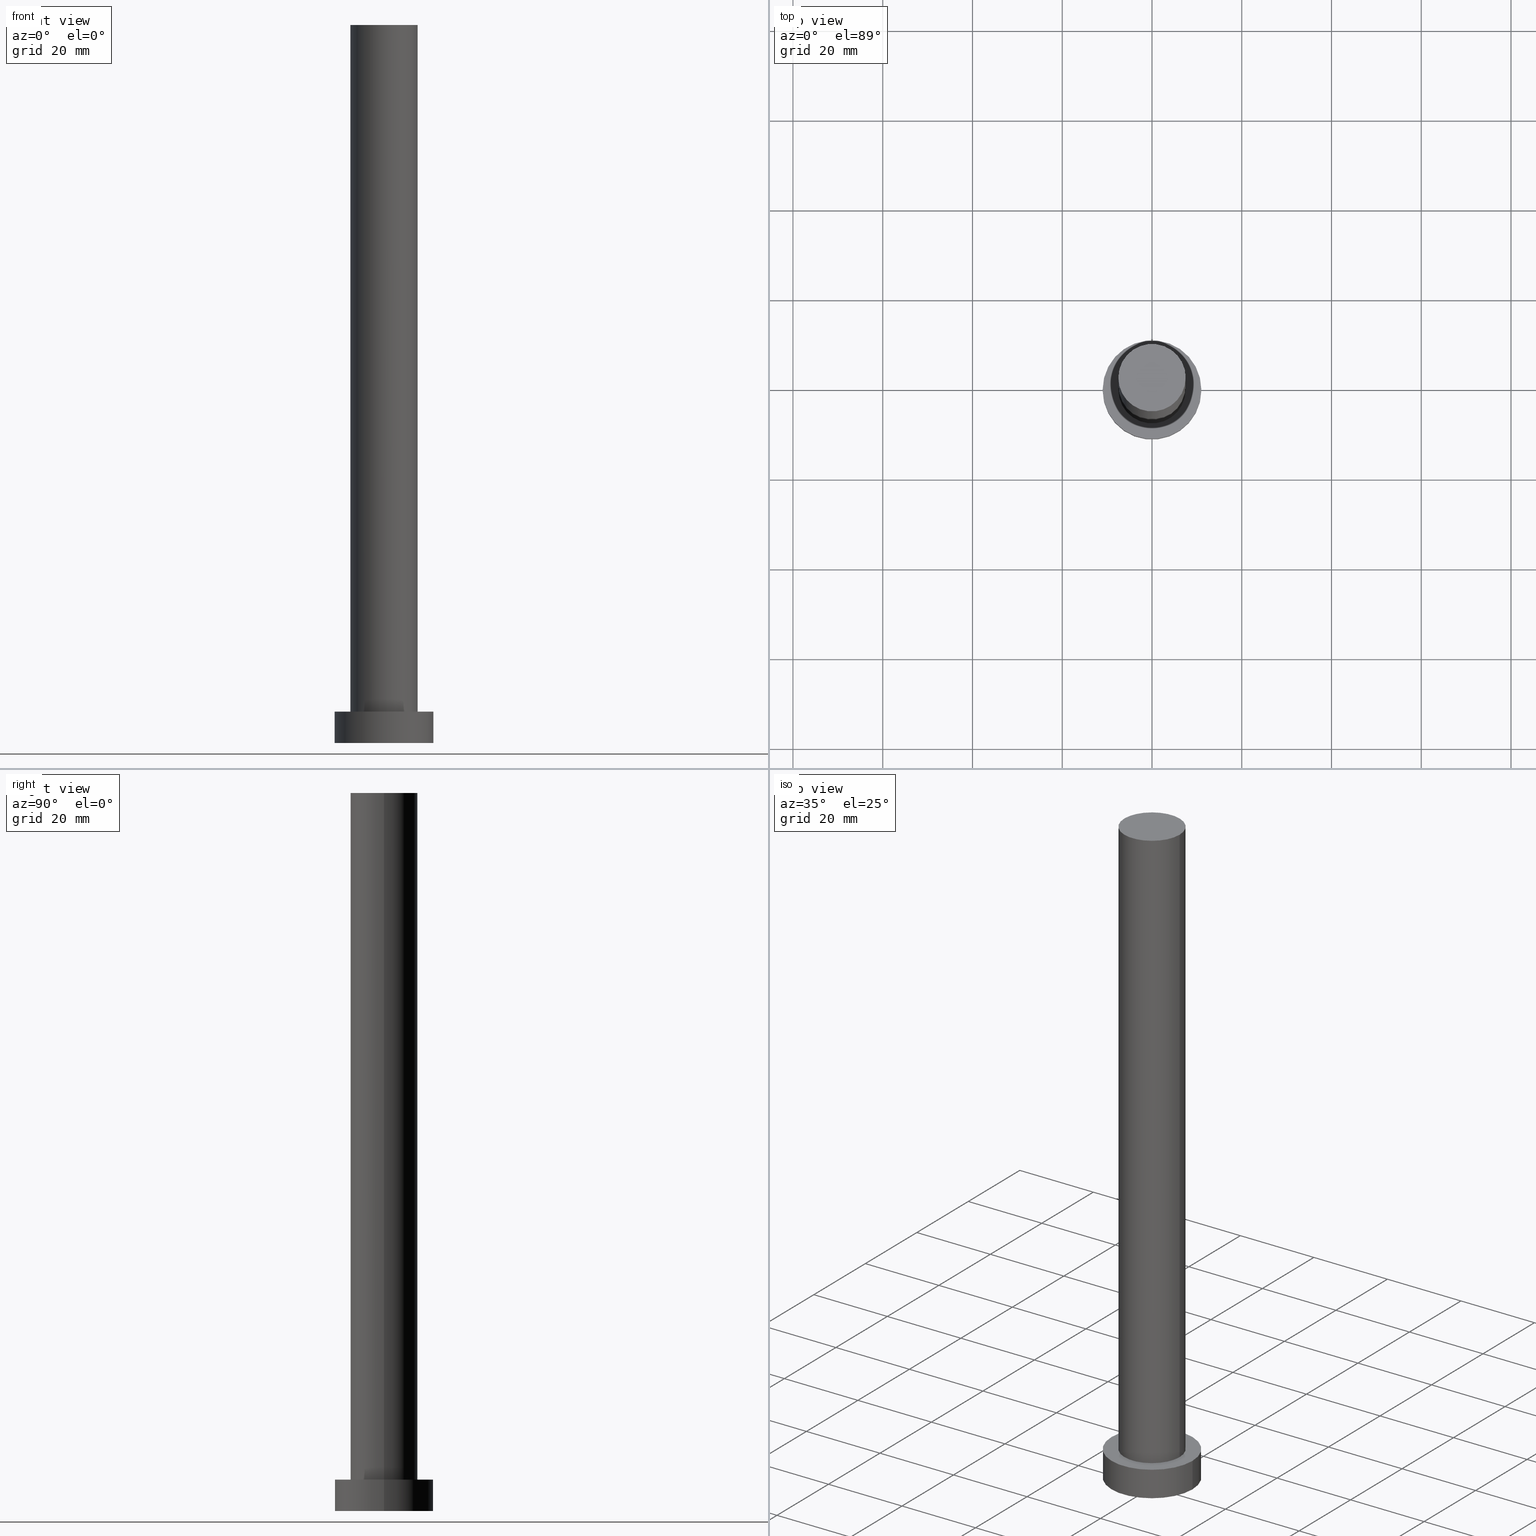
[diagram: canonical four-view strip — front | top / right | iso, engineering-drawing reading convention]
A machine part, canonical four-view strip (front | top / right | iso — engineering-drawing reading convention). The complete STEP part file that produces these views, byte-faithful:
ISO-10303-21;
HEADER;
FILE_DESCRIPTION (( 'STEP AP203' ),
    '1' );
FILE_NAME ('c7ae.STEP',
    '2023-02-13T10:39:53',
    ( '' ),
    ( '' ),
    'SwSTEP 2.0',
    'SolidWorks 2019',
    '' );
FILE_SCHEMA (( 'CONFIG_CONTROL_DESIGN' ));
ENDSEC;

DATA;
#1 = DIRECTION ( 'NONE',  ( 0.000000000000000000, 0.000000000000000000, 1.000000000000000000 ) ) ;
#2 = DIRECTION ( 'NONE',  ( 0.000000000000000000, 0.000000000000000000, 1.000000000000000000 ) ) ;
#3 = DIRECTION ( 'NONE',  ( 1.000000000000000000, 0.000000000000000000, 0.000000000000000000 ) ) ;
#4 = CIRCLE ( 'NONE', #38, 11.00000000000000000 ) ;
#5 = CC_DESIGN_PERSON_AND_ORGANIZATION_ASSIGNMENT ( #91, #173, ( #87 ) ) ;
#6 = AXIS2_PLACEMENT_3D ( 'NONE', #171, #189, #51 ) ;
#7 = UNCERTAINTY_MEASURE_WITH_UNIT (LENGTH_MEASURE( 1.000000000000000082E-05 ), #31, 'distance_accuracy_value', 'NONE');
#8 = EDGE_CURVE ( 'NONE', #103, #221, #65, .T. ) ;
#9 = ORIENTED_EDGE ( 'NONE', *, *, #148, .T. ) ;
#10 = DIRECTION ( 'NONE',  ( -0.000000000000000000, -0.000000000000000000, -1.000000000000000000 ) ) ;
#11 = CC_DESIGN_DATE_AND_TIME_ASSIGNMENT ( #227, #113, ( #125 ) ) ;
#12 = DESIGN_CONTEXT ( 'detailed design', #182, 'design' ) ;
#13 = DIRECTION ( 'NONE',  ( 0.000000000000000000, 0.000000000000000000, 1.000000000000000000 ) ) ;
#14 = APPROVAL_STATUS ( 'not_yet_approved' ) ;
#15 = CARTESIAN_POINT ( 'NONE',  ( 0.000000000000000000, 0.000000000000000000, 7.000000000000000000 ) ) ;
#16 = MANIFOLD_SOLID_BREP ( 'P�idat vysunut�m3', #146 ) ;
#17 = DIRECTION ( 'NONE',  ( 1.000000000000000000, 0.000000000000000000, 0.000000000000000000 ) ) ;
#18 = APPROVAL_STATUS ( 'not_yet_approved' ) ;
#19 = CARTESIAN_POINT ( 'NONE',  ( -7.500000000000000000, 0.000000000000000000, 160.0000000000000000 ) ) ;
#20 = DIRECTION ( 'NONE',  ( 0.000000000000000000, 0.000000000000000000, 1.000000000000000000 ) ) ;
#21 = PERSON_AND_ORGANIZATION ( #185, #168 ) ;
#22 = ADVANCED_FACE ( 'NONE', ( #137, #196 ), #174, .T. ) ;
#23 = FACE_OUTER_BOUND ( 'NONE', #105, .T. ) ;
#24 = CC_DESIGN_PERSON_AND_ORGANIZATION_ASSIGNMENT ( #132, #152, ( #177 ) ) ;
#25 = EDGE_CURVE ( 'NONE', #78, #76, #120, .T. ) ;
#26 = AXIS2_PLACEMENT_3D ( 'NONE', #222, #10, #98 ) ;
#27 = MECHANICAL_CONTEXT ( 'NONE', #69, 'mechanical' ) ;
#28 = ORIENTED_EDGE ( 'NONE', *, *, #219, .T. ) ;
#29 = CALENDAR_DATE ( 2023, 13, 2 ) ;
#30 = ORIENTED_EDGE ( 'NONE', *, *, #49, .T. ) ;
#31 =( LENGTH_UNIT ( ) NAMED_UNIT ( * ) SI_UNIT ( .MILLI., .METRE. ) );
#32 = AXIS2_PLACEMENT_3D ( 'NONE', #144, #181, #3 ) ;
#33 = ORIENTED_EDGE ( 'NONE', *, *, #8, .T. ) ;
#34 = ORIENTED_EDGE ( 'NONE', *, *, #25, .F. ) ;
#35 = PERSON_AND_ORGANIZATION ( #185, #168 ) ;
#36 = EDGE_LOOP ( 'NONE', ( #229, #52 ) ) ;
#37 = VECTOR ( 'NONE', #85, 1000.000000000000000 ) ;
#38 = AXIS2_PLACEMENT_3D ( 'NONE', #249, #194, #17 ) ;
#39 = DIRECTION ( 'NONE',  ( 1.000000000000000000, 0.000000000000000000, 0.000000000000000000 ) ) ;
#40 = CC_DESIGN_APPROVAL ( #54, ( #125 ) ) ;
#41 = COORDINATED_UNIVERSAL_TIME_OFFSET ( 1, 0, .AHEAD. ) ;
#42 = CARTESIAN_POINT ( 'NONE',  ( 0.000000000000000000, 0.000000000000000000, 7.000000000000000000 ) ) ;
#43 = CALENDAR_DATE ( 2023, 13, 2 ) ;
#44 = CARTESIAN_POINT ( 'NONE',  ( 7.500000000000000000, 9.184850993605147944E-16, 7.000000000000000000 ) ) ;
#45 = DIRECTION ( 'NONE',  ( -1.000000000000000000, 0.000000000000000000, 0.000000000000000000 ) ) ;
#46 = PRODUCT_RELATED_PRODUCT_CATEGORY ( 'detail', '', ( #177 ) ) ;
#47 = LOCAL_TIME ( 11, 39, 53.00000000000000000, #230 ) ;
#48 = CARTESIAN_POINT ( 'NONE',  ( 7.500000000000000000, 9.184850993605147944E-16, 160.0000000000000000 ) ) ;
#49 = EDGE_CURVE ( 'NONE', #58, #245, #215, .T. ) ;
#50 = ORIENTED_EDGE ( 'NONE', *, *, #151, .F. ) ;
#51 = DIRECTION ( 'NONE',  ( 1.000000000000000000, 0.000000000000000000, 0.000000000000000000 ) ) ;
#52 = ORIENTED_EDGE ( 'NONE', *, *, #151, .T. ) ;
#53 = APPROVAL_STATUS ( 'not_yet_approved' ) ;
#54 = APPROVAL ( #14, 'NEUR�EN�' ) ;
#55 = ORIENTED_EDGE ( 'NONE', *, *, #71, .T. ) ;
#56 = VECTOR ( 'NONE', #232, 1000.000000000000000 ) ;
#57 =( GEOMETRIC_REPRESENTATION_CONTEXT ( 3 ) GLOBAL_UNCERTAINTY_ASSIGNED_CONTEXT ( ( #7 ) ) GLOBAL_UNIT_ASSIGNED_CONTEXT ( ( #31, #97, #73 ) ) REPRESENTATION_CONTEXT ( 'NONE', 'WORKASPACE' ) );
#58 = VERTEX_POINT ( 'NONE', #135 ) ;
#59 = VERTEX_POINT ( 'NONE', #44 ) ;
#60 = DIRECTION ( 'NONE',  ( 1.000000000000000000, 0.000000000000000000, 0.000000000000000000 ) ) ;
#61 = AXIS2_PLACEMENT_3D ( 'NONE', #218, #124, #145 ) ;
#62 = DIRECTION ( 'NONE',  ( 1.000000000000000000, 0.000000000000000000, -0.000000000000000000 ) ) ;
#63 = PLANE ( 'NONE',  #250 ) ;
#64 = ADVANCED_BREP_SHAPE_REPRESENTATION ( 'c7ae', ( #16, #6 ), #57 ) ;
#65 = LINE ( 'NONE', #191, #56 ) ;
#66 = PLANE ( 'NONE',  #61 ) ;
#67 = CC_DESIGN_APPROVAL ( #214, ( #149 ) ) ;
#68 = EDGE_CURVE ( 'NONE', #58, #103, #104, .T. ) ;
#69 = APPLICATION_CONTEXT ( 'configuration controlled 3d designs of mechanical parts and assemblies' ) ;
#70 = CIRCLE ( 'NONE', #242, 11.00000000000000000 ) ;
#71 = EDGE_CURVE ( 'NONE', #59, #76, #79, .T. ) ;
#72 = EDGE_LOOP ( 'NONE', ( #131, #224 ) ) ;
#73 =( NAMED_UNIT ( * ) SI_UNIT ( $, .STERADIAN. ) SOLID_ANGLE_UNIT ( ) );
#74 = AXIS2_PLACEMENT_3D ( 'NONE', #42, #252, #62 ) ;
#75 = CC_DESIGN_APPROVAL ( #89, ( #87 ) ) ;
#76 = VERTEX_POINT ( 'NONE', #90 ) ;
#77 = ORIENTED_EDGE ( 'NONE', *, *, #207, .T. ) ;
#78 = VERTEX_POINT ( 'NONE', #161 ) ;
#79 = CIRCLE ( 'NONE', #240, 7.500000000000000000 ) ;
#80 = EDGE_CURVE ( 'NONE', #186, #78, #255, .T. ) ;
#81 = APPROVAL_PERSON_ORGANIZATION ( #136, #89, #155 ) ;
#82 = CYLINDRICAL_SURFACE ( 'NONE', #126, 7.500000000000000000 ) ;
#83 = DATE_TIME_ROLE ( 'classification_date' ) ;
#84 = DIRECTION ( 'NONE',  ( -0.000000000000000000, -0.000000000000000000, -1.000000000000000000 ) ) ;
#85 = DIRECTION ( 'NONE',  ( -0.000000000000000000, -0.000000000000000000, -1.000000000000000000 ) ) ;
#86 = APPROVAL_DATE_TIME ( #158, #89 ) ;
#87 = SECURITY_CLASSIFICATION ( '', '', #253 ) ;
#88 = ORIENTED_EDGE ( 'NONE', *, *, #148, .F. ) ;
#89 = APPROVAL ( #18, 'NEUR�EN�' ) ;
#90 = CARTESIAN_POINT ( 'NONE',  ( -7.500000000000000000, 0.000000000000000000, 7.000000000000000000 ) ) ;
#91 = PERSON_AND_ORGANIZATION ( #185, #168 ) ;
#92 = CARTESIAN_POINT ( 'NONE',  ( 11.00000000000000000, 1.347111479062088405E-15, 0.000000000000000000 ) ) ;
#93 = CIRCLE ( 'NONE', #32, 7.500000000000000000 ) ;
#94 = ADVANCED_FACE ( 'NONE', ( #217 ), #82, .T. ) ;
#95 = CARTESIAN_POINT ( 'NONE',  ( 0.000000000000000000, 0.000000000000000000, 160.0000000000000000 ) ) ;
#96 = ORIENTED_EDGE ( 'NONE', *, *, #8, .F. ) ;
#97 =( NAMED_UNIT ( * ) PLANE_ANGLE_UNIT ( ) SI_UNIT ( $, .RADIAN. ) );
#98 = DIRECTION ( 'NONE',  ( -1.000000000000000000, 0.000000000000000000, 0.000000000000000000 ) ) ;
#99 = APPROVAL_ROLE ( '' ) ;
#100 = DIRECTION ( 'NONE',  ( 0.000000000000000000, 0.000000000000000000, 1.000000000000000000 ) ) ;
#101 = CARTESIAN_POINT ( 'NONE',  ( 0.000000000000000000, 0.000000000000000000, 160.0000000000000000 ) ) ;
#102 = SHAPE_DEFINITION_REPRESENTATION ( #193, #64 ) ;
#103 = VERTEX_POINT ( 'NONE', #209 ) ;
#104 = CIRCLE ( 'NONE', #197, 11.00000000000000000 ) ;
#105 = EDGE_LOOP ( 'NONE', ( #88, #243, #110, #28 ) ) ;
#106 = COORDINATED_UNIVERSAL_TIME_OFFSET ( 1, 0, .AHEAD. ) ;
#107 = DIRECTION ( 'NONE',  ( 0.000000000000000000, 0.000000000000000000, 1.000000000000000000 ) ) ;
#108 = AXIS2_PLACEMENT_3D ( 'NONE', #15, #100, #176 ) ;
#109 = EDGE_LOOP ( 'NONE', ( #129, #128 ) ) ;
#110 = ORIENTED_EDGE ( 'NONE', *, *, #25, .T. ) ;
#111 = LOCAL_TIME ( 11, 39, 53.00000000000000000, #216 ) ;
#112 = ORIENTED_EDGE ( 'NONE', *, *, #133, .T. ) ;
#113 = DATE_TIME_ROLE ( 'creation_date' ) ;
#114 = DIRECTION ( 'NONE',  ( -1.000000000000000000, 0.000000000000000000, 0.000000000000000000 ) ) ;
#115 = AXIS2_PLACEMENT_3D ( 'NONE', #195, #198, #114 ) ;
#116 = APPROVAL_PERSON_ORGANIZATION ( #35, #54, #99 ) ;
#117 = DIRECTION ( 'NONE',  ( -1.000000000000000000, 0.000000000000000000, 0.000000000000000000 ) ) ;
#118 = PERSON_AND_ORGANIZATION_ROLE ( 'design_supplier' ) ;
#119 = CC_DESIGN_DATE_AND_TIME_ASSIGNMENT ( #235, #83, ( #87 ) ) ;
#120 = LINE ( 'NONE', #19, #211 ) ;
#121 = CARTESIAN_POINT ( 'NONE',  ( 0.000000000000000000, 0.000000000000000000, 7.000000000000000000 ) ) ;
#122 = FACE_OUTER_BOUND ( 'NONE', #202, .T. ) ;
#123 = ADVANCED_FACE ( 'NONE', ( #122 ), #213, .T. ) ;
#124 = DIRECTION ( 'NONE',  ( 0.000000000000000000, 0.000000000000000000, 1.000000000000000000 ) ) ;
#125 = PRODUCT_DEFINITION ( 'NEZN�M�', '', #149, #12 ) ;
#126 = AXIS2_PLACEMENT_3D ( 'NONE', #236, #139, #45 ) ;
#127 = ADVANCED_FACE ( 'NONE', ( #23 ), #172, .T. ) ;
#128 = ORIENTED_EDGE ( 'NONE', *, *, #80, .T. ) ;
#129 = ORIENTED_EDGE ( 'NONE', *, *, #233, .T. ) ;
#130 = APPROVAL_ROLE ( '' ) ;
#131 = ORIENTED_EDGE ( 'NONE', *, *, #219, .F. ) ;
#132 = PERSON_AND_ORGANIZATION ( #185, #168 ) ;
#133 = EDGE_CURVE ( 'NONE', #221, #245, #4, .T. ) ;
#134 = PERSON_AND_ORGANIZATION ( #185, #168 ) ;
#135 = CARTESIAN_POINT ( 'NONE',  ( -11.00000000000000000, 0.000000000000000000, 7.000000000000000000 ) ) ;
#136 = PERSON_AND_ORGANIZATION ( #185, #168 ) ;
#137 = FACE_BOUND ( 'NONE', #72, .T. ) ;
#138 = AXIS2_PLACEMENT_3D ( 'NONE', #237, #1, #60 ) ;
#139 = DIRECTION ( 'NONE',  ( -0.000000000000000000, -0.000000000000000000, -1.000000000000000000 ) ) ;
#140 = DIRECTION ( 'NONE',  ( 1.000000000000000000, 0.000000000000000000, -0.000000000000000000 ) ) ;
#141 = CARTESIAN_POINT ( 'NONE',  ( -11.00000000000000000, 0.000000000000000000, 7.000000000000000000 ) ) ;
#142 = CALENDAR_DATE ( 2023, 13, 2 ) ;
#143 = AXIS2_PLACEMENT_3D ( 'NONE', #95, #13, #201 ) ;
#144 = CARTESIAN_POINT ( 'NONE',  ( 0.000000000000000000, 0.000000000000000000, 7.000000000000000000 ) ) ;
#145 = DIRECTION ( 'NONE',  ( 1.000000000000000000, 0.000000000000000000, -0.000000000000000000 ) ) ;
#146 = CLOSED_SHELL ( 'NONE', ( #94, #123, #241, #22, #167, #127, #226 ) ) ;
#147 = AXIS2_PLACEMENT_3D ( 'NONE', #101, #212, #117 ) ;
#148 = EDGE_CURVE ( 'NONE', #186, #59, #160, .T. ) ;
#149 = PRODUCT_DEFINITION_FORMATION_WITH_SPECIFIED_SOURCE ( 'LIBOVOLN�', '', #177, .NOT_KNOWN. ) ;
#150 = COORDINATED_UNIVERSAL_TIME_OFFSET ( 1, 0, .AHEAD. ) ;
#151 = EDGE_CURVE ( 'NONE', #103, #58, #183, .T. ) ;
#152 = PERSON_AND_ORGANIZATION_ROLE ( 'design_owner' ) ;
#153 = APPLICATION_PROTOCOL_DEFINITION ( 'international standard', 'config_control_design', 1994, #182 ) ;
#154 = CARTESIAN_POINT ( 'NONE',  ( 0.000000000000000000, 0.000000000000000000, 7.000000000000000000 ) ) ;
#155 = APPROVAL_ROLE ( '' ) ;
#156 = ORIENTED_EDGE ( 'NONE', *, *, #133, .F. ) ;
#157 = FACE_OUTER_BOUND ( 'NONE', #206, .T. ) ;
#158 = DATE_AND_TIME ( #142, #111 ) ;
#159 = CC_DESIGN_SECURITY_CLASSIFICATION ( #87, ( #149 ) ) ;
#160 = LINE ( 'NONE', #231, #37 ) ;
#161 = CARTESIAN_POINT ( 'NONE',  ( -7.500000000000000000, 0.000000000000000000, 160.0000000000000000 ) ) ;
#162 = FACE_OUTER_BOUND ( 'NONE', #109, .T. ) ;
#163 = CIRCLE ( 'NONE', #143, 7.500000000000000000 ) ;
#164 = PERSON_AND_ORGANIZATION ( #185, #168 ) ;
#165 = CC_DESIGN_PERSON_AND_ORGANIZATION_ASSIGNMENT ( #134, #208, ( #125 ) ) ;
#166 = ORIENTED_EDGE ( 'NONE', *, *, #68, .F. ) ;
#167 = ADVANCED_FACE ( 'NONE', ( #157 ), #63, .F. ) ;
#168 = ORGANIZATION ( 'NEUR�EN�', 'NEUR�EN�', '' ) ;
#169 = EDGE_LOOP ( 'NONE', ( #96, #166, #30, #77 ) ) ;
#170 = DATE_AND_TIME ( #187, #47 ) ;
#171 = CARTESIAN_POINT ( 'NONE',  ( 0.000000000000000000, 0.000000000000000000, 0.000000000000000000 ) ) ;
#172 = CYLINDRICAL_SURFACE ( 'NONE', #147, 7.500000000000000000 ) ;
#173 = PERSON_AND_ORGANIZATION_ROLE ( 'classification_officer' ) ;
#174 = PLANE ( 'NONE',  #74 ) ;
#175 = CC_DESIGN_PERSON_AND_ORGANIZATION_ASSIGNMENT ( #238, #220, ( #149 ) ) ;
#176 = DIRECTION ( 'NONE',  ( 1.000000000000000000, 0.000000000000000000, 0.000000000000000000 ) ) ;
#177 = PRODUCT ( 'c7ae', 'c7ae', '', ( #27 ) ) ;
#178 = DIRECTION ( 'NONE',  ( 1.000000000000000000, 0.000000000000000000, 0.000000000000000000 ) ) ;
#179 = LOCAL_TIME ( 11, 39, 53.00000000000000000, #150 ) ;
#180 = DIRECTION ( 'NONE',  ( -0.000000000000000000, -0.000000000000000000, -1.000000000000000000 ) ) ;
#181 = DIRECTION ( 'NONE',  ( 0.000000000000000000, 0.000000000000000000, 1.000000000000000000 ) ) ;
#182 = APPLICATION_CONTEXT ( 'configuration controlled 3d designs of mechanical parts and assemblies' ) ;
#183 = CIRCLE ( 'NONE', #108, 11.00000000000000000 ) ;
#184 = LOCAL_TIME ( 11, 39, 53.00000000000000000, #41 ) ;
#185 = PERSON ( 'NEUR�EN�', 'NEUR�EN�', 'NEUR�EN�', ('NEUR�EN�'), ('NEUR�EN�'), ('NEUR�EN�') ) ;
#186 = VERTEX_POINT ( 'NONE', #48 ) ;
#187 = CALENDAR_DATE ( 2023, 13, 2 ) ;
#188 = APPLICATION_PROTOCOL_DEFINITION ( 'international standard', 'config_control_design', 1994, #69 ) ;
#189 = DIRECTION ( 'NONE',  ( 0.000000000000000000, 0.000000000000000000, 1.000000000000000000 ) ) ;
#190 = FACE_OUTER_BOUND ( 'NONE', #169, .T. ) ;
#191 = CARTESIAN_POINT ( 'NONE',  ( 11.00000000000000000, 1.347111479062088405E-15, 7.000000000000000000 ) ) ;
#192 = DATE_AND_TIME ( #210, #184 ) ;
#193 = PRODUCT_DEFINITION_SHAPE ( 'NONE', 'NONE',  #125 ) ;
#194 = DIRECTION ( 'NONE',  ( 0.000000000000000000, 0.000000000000000000, 1.000000000000000000 ) ) ;
#195 = CARTESIAN_POINT ( 'NONE',  ( 0.000000000000000000, 0.000000000000000000, 7.000000000000000000 ) ) ;
#196 = FACE_OUTER_BOUND ( 'NONE', #36, .T. ) ;
#197 = AXIS2_PLACEMENT_3D ( 'NONE', #121, #2, #178 ) ;
#198 = DIRECTION ( 'NONE',  ( -0.000000000000000000, -0.000000000000000000, -1.000000000000000000 ) ) ;
#199 = DIRECTION ( 'NONE',  ( 1.000000000000000000, 0.000000000000000000, 0.000000000000000000 ) ) ;
#200 = ORIENTED_EDGE ( 'NONE', *, *, #207, .F. ) ;
#201 = DIRECTION ( 'NONE',  ( 1.000000000000000000, 0.000000000000000000, 0.000000000000000000 ) ) ;
#202 = EDGE_LOOP ( 'NONE', ( #50, #33, #112, #247 ) ) ;
#203 = EDGE_LOOP ( 'NONE', ( #246, #9, #55, #34 ) ) ;
#204 = LOCAL_TIME ( 11, 39, 53.00000000000000000, #106 ) ;
#205 = CYLINDRICAL_SURFACE ( 'NONE', #26, 11.00000000000000000 ) ;
#206 = EDGE_LOOP ( 'NONE', ( #200, #156 ) ) ;
#207 = EDGE_CURVE ( 'NONE', #245, #221, #70, .T. ) ;
#208 = PERSON_AND_ORGANIZATION_ROLE ( 'creator' ) ;
#209 = CARTESIAN_POINT ( 'NONE',  ( 11.00000000000000000, 1.347111479062088405E-15, 7.000000000000000000 ) ) ;
#210 = CALENDAR_DATE ( 2023, 13, 2 ) ;
#211 = VECTOR ( 'NONE', #180, 1000.000000000000000 ) ;
#212 = DIRECTION ( 'NONE',  ( -0.000000000000000000, -0.000000000000000000, -1.000000000000000000 ) ) ;
#213 = CYLINDRICAL_SURFACE ( 'NONE', #115, 11.00000000000000000 ) ;
#214 = APPROVAL ( #53, 'NEUR�EN�' ) ;
#215 = LINE ( 'NONE', #141, #223 ) ;
#216 = COORDINATED_UNIVERSAL_TIME_OFFSET ( 1, 0, .AHEAD. ) ;
#217 = FACE_OUTER_BOUND ( 'NONE', #203, .T. ) ;
#218 = CARTESIAN_POINT ( 'NONE',  ( 0.000000000000000000, 0.000000000000000000, 160.0000000000000000 ) ) ;
#219 = EDGE_CURVE ( 'NONE', #76, #59, #93, .T. ) ;
#220 = PERSON_AND_ORGANIZATION_ROLE ( 'creator' ) ;
#221 = VERTEX_POINT ( 'NONE', #92 ) ;
#222 = CARTESIAN_POINT ( 'NONE',  ( 0.000000000000000000, 0.000000000000000000, 7.000000000000000000 ) ) ;
#223 = VECTOR ( 'NONE', #84, 1000.000000000000000 ) ;
#224 = ORIENTED_EDGE ( 'NONE', *, *, #71, .F. ) ;
#225 = APPROVAL_DATE_TIME ( #170, #54 ) ;
#226 = ADVANCED_FACE ( 'NONE', ( #162 ), #66, .T. ) ;
#227 = DATE_AND_TIME ( #29, #179 ) ;
#228 = CC_DESIGN_PERSON_AND_ORGANIZATION_ASSIGNMENT ( #21, #118, ( #149 ) ) ;
#229 = ORIENTED_EDGE ( 'NONE', *, *, #68, .T. ) ;
#230 = COORDINATED_UNIVERSAL_TIME_OFFSET ( 1, 0, .AHEAD. ) ;
#231 = CARTESIAN_POINT ( 'NONE',  ( 7.500000000000000000, 9.184850993605147944E-16, 160.0000000000000000 ) ) ;
#232 = DIRECTION ( 'NONE',  ( -0.000000000000000000, -0.000000000000000000, -1.000000000000000000 ) ) ;
#233 = EDGE_CURVE ( 'NONE', #78, #186, #163, .T. ) ;
#234 = DIRECTION ( 'NONE',  ( 0.000000000000000000, 0.000000000000000000, 1.000000000000000000 ) ) ;
#235 = DATE_AND_TIME ( #43, #204 ) ;
#236 = CARTESIAN_POINT ( 'NONE',  ( 0.000000000000000000, 0.000000000000000000, 160.0000000000000000 ) ) ;
#237 = CARTESIAN_POINT ( 'NONE',  ( 0.000000000000000000, 0.000000000000000000, 160.0000000000000000 ) ) ;
#238 = PERSON_AND_ORGANIZATION ( #185, #168 ) ;
#239 = CARTESIAN_POINT ( 'NONE',  ( 0.000000000000000000, 0.000000000000000000, 0.000000000000000000 ) ) ;
#240 = AXIS2_PLACEMENT_3D ( 'NONE', #154, #20, #39 ) ;
#241 = ADVANCED_FACE ( 'NONE', ( #190 ), #205, .T. ) ;
#242 = AXIS2_PLACEMENT_3D ( 'NONE', #239, #107, #199 ) ;
#243 = ORIENTED_EDGE ( 'NONE', *, *, #233, .F. ) ;
#244 = APPROVAL_PERSON_ORGANIZATION ( #164, #214, #130 ) ;
#245 = VERTEX_POINT ( 'NONE', #248 ) ;
#246 = ORIENTED_EDGE ( 'NONE', *, *, #80, .F. ) ;
#247 = ORIENTED_EDGE ( 'NONE', *, *, #49, .F. ) ;
#248 = CARTESIAN_POINT ( 'NONE',  ( -11.00000000000000000, 0.000000000000000000, 0.000000000000000000 ) ) ;
#249 = CARTESIAN_POINT ( 'NONE',  ( 0.000000000000000000, 0.000000000000000000, 0.000000000000000000 ) ) ;
#250 = AXIS2_PLACEMENT_3D ( 'NONE', #254, #234, #140 ) ;
#251 = APPROVAL_DATE_TIME ( #192, #214 ) ;
#252 = DIRECTION ( 'NONE',  ( 0.000000000000000000, 0.000000000000000000, 1.000000000000000000 ) ) ;
#253 = SECURITY_CLASSIFICATION_LEVEL ( 'unclassified' ) ;
#254 = CARTESIAN_POINT ( 'NONE',  ( 0.000000000000000000, 0.000000000000000000, 0.000000000000000000 ) ) ;
#255 = CIRCLE ( 'NONE', #138, 7.500000000000000000 ) ;
ENDSEC;
END-ISO-10303-21;
